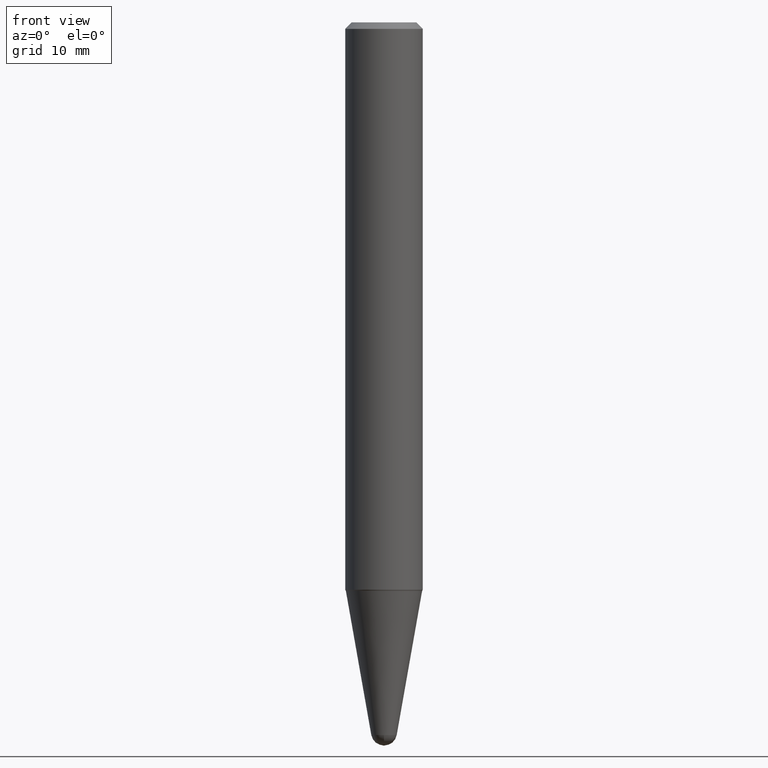
[diagram: clean part render]
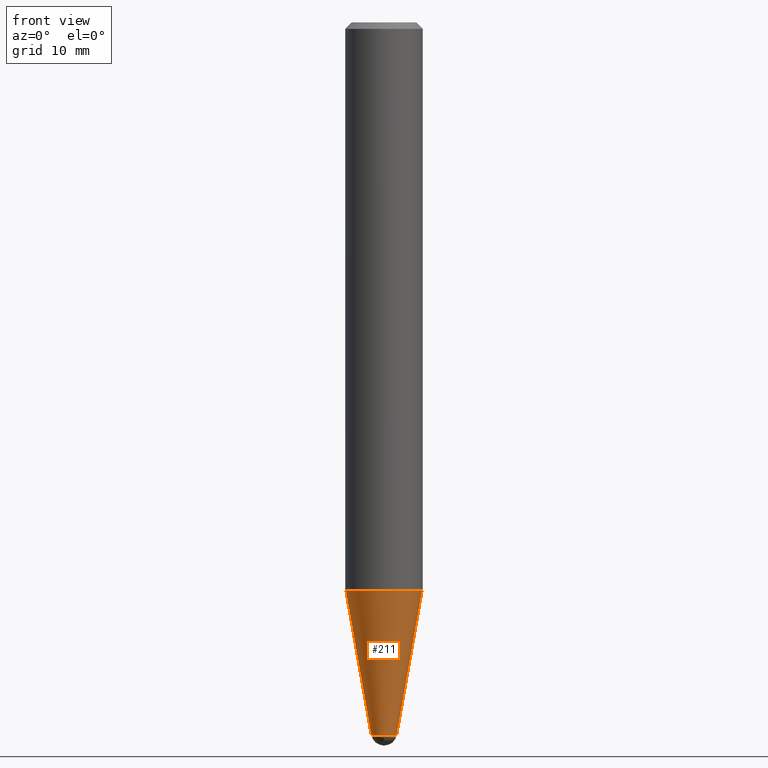
[diagram: same view with one face highlighted and labeled with its STEP entity id]
A machine part, front view. The second image highlights one B-rep face of the part: STEP entity #211.
In plain terms, the highlighted conical surface has half-angle 10 deg.
Its self-contained STEP definition (entity closure, byte-faithful):
#9 = DIRECTION ( 'NONE',  ( -0.1736481776669304145, 4.672282404182340767E-15, 0.9848077530122080203 ) ) ;
#12 = CARTESIAN_POINT ( 'NONE',  ( -4.373424968893228711E-16, -0.06155048456327506801, -3.448353011104182908 ) ) ;
#13 = ORIENTED_EDGE ( 'NONE', *, *, #273, .T. ) ;
#17 = ORIENTED_EDGE ( 'NONE', *, *, #25, .F. ) ;
#25 = EDGE_CURVE ( 'NONE', #109, #199, #164, .T. ) ;
#31 = VECTOR ( 'NONE', #9, 39.37007874015748854 ) ;
#33 = CARTESIAN_POINT ( 'NONE',  ( 0.06155048456326336903, -1.168045736915459686E-14, -3.448353011104182908 ) ) ;
#35 = DIRECTION ( 'NONE',  ( -2.445468806185136597E-29, 3.491481338843145583E-15, 1.000000000000000000 ) ) ;
#44 = CARTESIAN_POINT ( 'NONE',  ( 0.1846889624799291363, -1.089124981379659235E-14, -2.750000000000000000 ) ) ;
#45 = CARTESIAN_POINT ( 'NONE',  ( -0.06155048456326336903, -1.160251769112441577E-14, -3.448353011104182908 ) ) ;
#62 = FACE_OUTER_BOUND ( 'NONE', #406, .T. ) ;
#65 = LINE ( 'NONE', #319, #126 ) ;
#66 = AXIS2_PLACEMENT_3D ( 'NONE', #69, #108, #460 ) ;
#69 = CARTESIAN_POINT ( 'NONE',  ( 8.432839721369867924E-29, -1.203986018801382488E-14, -3.448353011104182908 ) ) ;
#74 = ORIENTED_EDGE ( 'NONE', *, *, #350, .T. ) ;
#88 = DIRECTION ( 'NONE',  ( -2.445468806185136597E-29, 3.491481338843145583E-15, 1.000000000000000000 ) ) ;
#108 = DIRECTION ( 'NONE',  ( -2.445468806185136597E-29, 3.491481338843145583E-15, 1.000000000000000000 ) ) ;
#109 = VERTEX_POINT ( 'NONE', #239 ) ;
#115 = EDGE_CURVE ( 'NONE', #199, #447, #327, .T. ) ;
#126 = VECTOR ( 'NONE', #177, 39.37007874015748854 ) ;
#133 = CARTESIAN_POINT ( 'NONE',  ( -0.1846889624799291363, -8.289279675166815415E-15, -2.750000000000000000 ) ) ;
#164 = LINE ( 'NONE', #45, #31 ) ;
#166 = CIRCLE ( 'NONE', #66, 0.06155048456326336903 ) ;
#171 = CARTESIAN_POINT ( 'NONE',  ( 8.432839721369867924E-29, -1.203986018801382488E-14, -3.448353011104182908 ) ) ;
#177 = DIRECTION ( 'NONE',  ( 0.1736481776669304145, 2.225859148293765253E-15, 0.9848077530122080203 ) ) ;
#179 = DIRECTION ( 'NONE',  ( 1.000000000000000000, -6.982962677686260400E-15, 0.000000000000000000 ) ) ;
#199 = VERTEX_POINT ( 'NONE', #133 ) ;
#205 = CARTESIAN_POINT ( 'NONE',  ( 6.725039217009124520E-29, -9.601573681818649859E-15, -2.750000000000000000 ) ) ;
#211 = ADVANCED_FACE ( 'NONE', ( #62 ), #367, .T. ) ;
#212 = DIRECTION ( 'NONE',  ( 1.000000000000000000, -6.982962677686268288E-15, 0.000000000000000000 ) ) ;
#214 = AXIS2_PLACEMENT_3D ( 'NONE', #252, #35, #179 ) ;
#220 = AXIS2_PLACEMENT_3D ( 'NONE', #171, #349, #316 ) ;
#239 = CARTESIAN_POINT ( 'NONE',  ( -0.06155048456326336903, -9.945898683145615595E-15, -3.448353011104182908 ) ) ;
#252 = CARTESIAN_POINT ( 'NONE',  ( 8.432839721369867924E-29, -1.203986018801382488E-14, -3.448353011104182908 ) ) ;
#253 = ORIENTED_EDGE ( 'NONE', *, *, #115, .F. ) ;
#258 = EDGE_CURVE ( 'NONE', #446, #265, #166, .T. ) ;
#261 = CIRCLE ( 'NONE', #214, 0.06155048456326336903 ) ;
#265 = VERTEX_POINT ( 'NONE', #33 ) ;
#273 = EDGE_CURVE ( 'NONE', #265, #447, #65, .T. ) ;
#296 = ORIENTED_EDGE ( 'NONE', *, *, #258, .T. ) ;
#316 = DIRECTION ( 'NONE',  ( 1.000000000000000000, -6.982962677686260400E-15, 0.000000000000000000 ) ) ;
#319 = CARTESIAN_POINT ( 'NONE',  ( 0.06155048456326336903, -1.246966492451259664E-14, -3.448353011104182908 ) ) ;
#327 = CIRCLE ( 'NONE', #345, 0.1846889624799291363 ) ;
#345 = AXIS2_PLACEMENT_3D ( 'NONE', #205, #88, #212 ) ;
#349 = DIRECTION ( 'NONE',  ( -2.445468806185136597E-29, 3.491481338843145583E-15, 1.000000000000000000 ) ) ;
#350 = EDGE_CURVE ( 'NONE', #109, #446, #261, .T. ) ;
#367 = CONICAL_SURFACE ( 'NONE', #220, 0.06155048456326336903, 0.1745329251994330311 ) ;
#406 = EDGE_LOOP ( 'NONE', ( #17, #74, #296, #13, #253 ) ) ;
#446 = VERTEX_POINT ( 'NONE', #12 ) ;
#447 = VERTEX_POINT ( 'NONE', #44 ) ;
#460 = DIRECTION ( 'NONE',  ( 1.000000000000000000, -6.982962677686260400E-15, 0.000000000000000000 ) ) ;